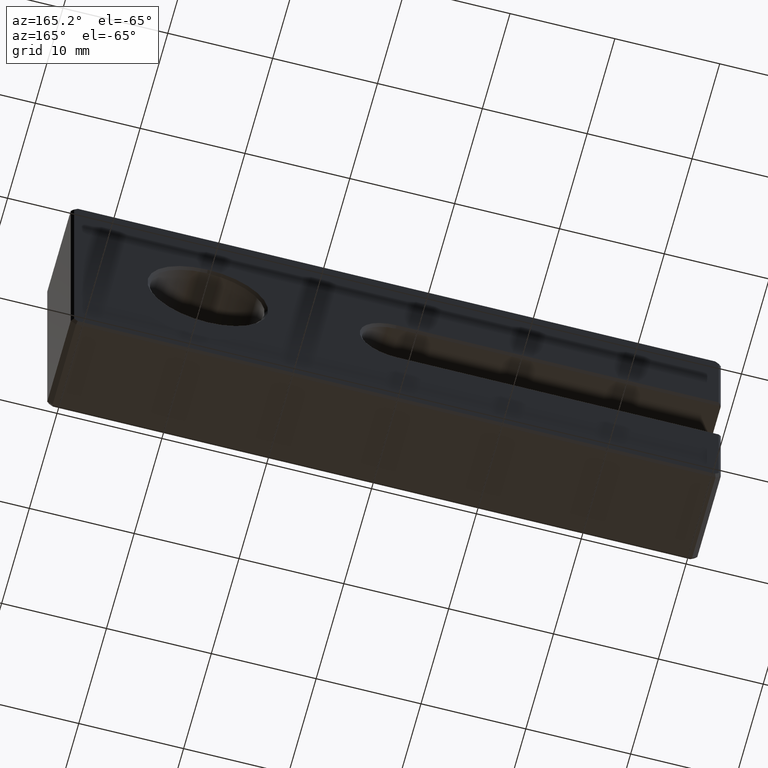
[diagram: clean part render]
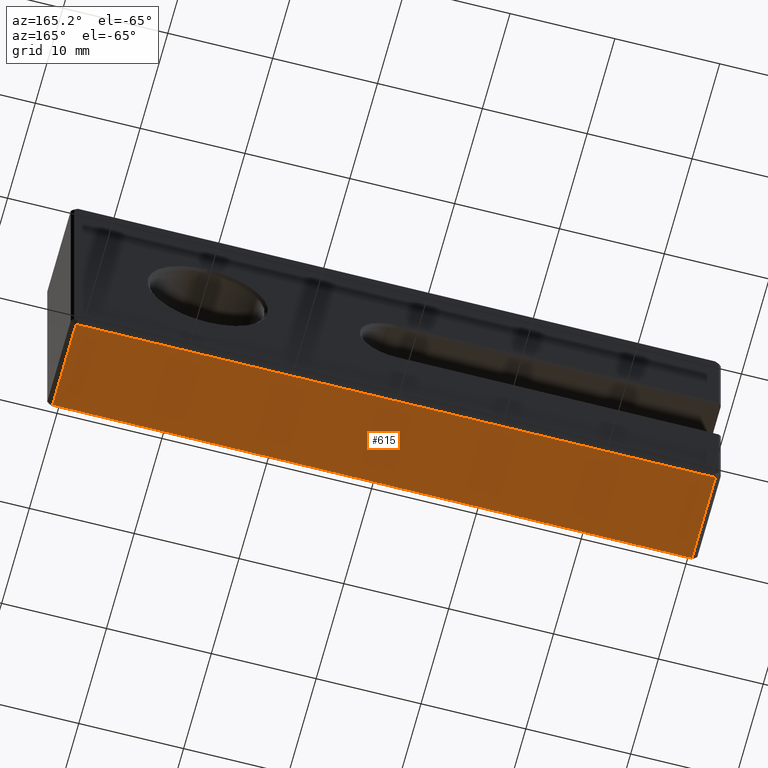
[diagram: same view with one face highlighted and labeled with its STEP entity id]
A machine part, auxiliary view. The second image highlights one B-rep face of the part: STEP entity #615.
In plain terms, the highlighted planar face has unit normal (0, 0, 1).
Its self-contained STEP definition (entity closure, byte-faithful):
#21 = VERTEX_POINT ( 'NONE', #653 ) ;
#46 = DIRECTION ( 'NONE',  ( 1.000000000000000000, 0.000000000000000000, 0.000000000000000000 ) ) ;
#47 = PLANE ( 'NONE',  #914 ) ;
#58 = CARTESIAN_POINT ( 'NONE',  ( 30.50000000000000000, 9.000000000000000000, -12.49999999999999822 ) ) ;
#86 = CARTESIAN_POINT ( 'NONE',  ( 30.50000000000000000, 0.2499999999999932832, -12.49999999999999822 ) ) ;
#103 = CARTESIAN_POINT ( 'NONE',  ( -31.00000000000000711, 0.2499999999999932832, -12.49999999999999822 ) ) ;
#158 = ORIENTED_EDGE ( 'NONE', *, *, #1008, .T. ) ;
#174 = CARTESIAN_POINT ( 'NONE',  ( -30.50000000000000711, 8.749999999999998224, -12.49999999999999822 ) ) ;
#209 = DIRECTION ( 'NONE',  ( -1.000000000000000000, 0.000000000000000000, 0.000000000000000000 ) ) ;
#269 = VECTOR ( 'NONE', #1114, 1000.000000000000000 ) ;
#365 = EDGE_CURVE ( 'NONE', #787, #1144, #557, .T. ) ;
#387 = ORIENTED_EDGE ( 'NONE', *, *, #921, .T. ) ;
#393 = VECTOR ( 'NONE', #46, 1000.000000000000000 ) ;
#409 = DIRECTION ( 'NONE',  ( 0.000000000000000000, 0.000000000000000000, 1.000000000000000000 ) ) ;
#557 = LINE ( 'NONE', #920, #269 ) ;
#566 = CARTESIAN_POINT ( 'NONE',  ( -30.50000000000000711, 0.2499999999999932832, -12.49999999999999822 ) ) ;
#583 = FACE_OUTER_BOUND ( 'NONE', #602, .T. ) ;
#588 = CARTESIAN_POINT ( 'NONE',  ( 30.50000000000000000, 8.749999999999998224, -12.49999999999999822 ) ) ;
#598 = DIRECTION ( 'NONE',  ( 0.000000000000000000, -1.000000000000000000, 0.000000000000000000 ) ) ;
#602 = EDGE_LOOP ( 'NONE', ( #387, #802, #775, #158 ) ) ;
#615 = ADVANCED_FACE ( 'NONE', ( #583 ), #47, .F. ) ;
#653 = CARTESIAN_POINT ( 'NONE',  ( 30.50000000000000000, 8.749999999999998224, -12.49999999999999822 ) ) ;
#727 = VERTEX_POINT ( 'NONE', #86 ) ;
#745 = LINE ( 'NONE', #103, #804 ) ;
#775 = ORIENTED_EDGE ( 'NONE', *, *, #365, .T. ) ;
#787 = VERTEX_POINT ( 'NONE', #566 ) ;
#802 = ORIENTED_EDGE ( 'NONE', *, *, #818, .T. ) ;
#804 = VECTOR ( 'NONE', #209, 1000.000000000000000 ) ;
#818 = EDGE_CURVE ( 'NONE', #727, #787, #745, .T. ) ;
#853 = LINE ( 'NONE', #58, #899 ) ;
#899 = VECTOR ( 'NONE', #598, 1000.000000000000000 ) ;
#914 = AXIS2_PLACEMENT_3D ( 'NONE', #1131, #409, #1041 ) ;
#920 = CARTESIAN_POINT ( 'NONE',  ( -30.50000000000000711, 9.000000000000000000, -12.49999999999999822 ) ) ;
#921 = EDGE_CURVE ( 'NONE', #21, #727, #853, .T. ) ;
#1008 = EDGE_CURVE ( 'NONE', #1144, #21, #1057, .T. ) ;
#1041 = DIRECTION ( 'NONE',  ( 1.000000000000000000, 0.000000000000000000, -0.000000000000000000 ) ) ;
#1057 = LINE ( 'NONE', #588, #393 ) ;
#1114 = DIRECTION ( 'NONE',  ( -0.000000000000000000, 1.000000000000000000, 0.000000000000000000 ) ) ;
#1131 = CARTESIAN_POINT ( 'NONE',  ( -31.00000000000000711, 9.000000000000000000, -12.49999999999999822 ) ) ;
#1144 = VERTEX_POINT ( 'NONE', #174 ) ;